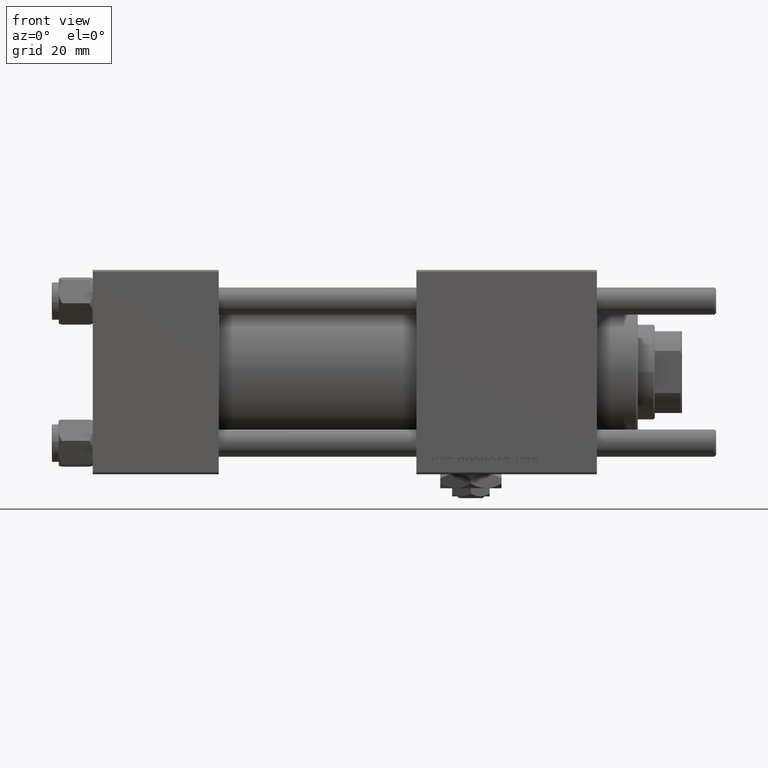
[diagram: clean part render]
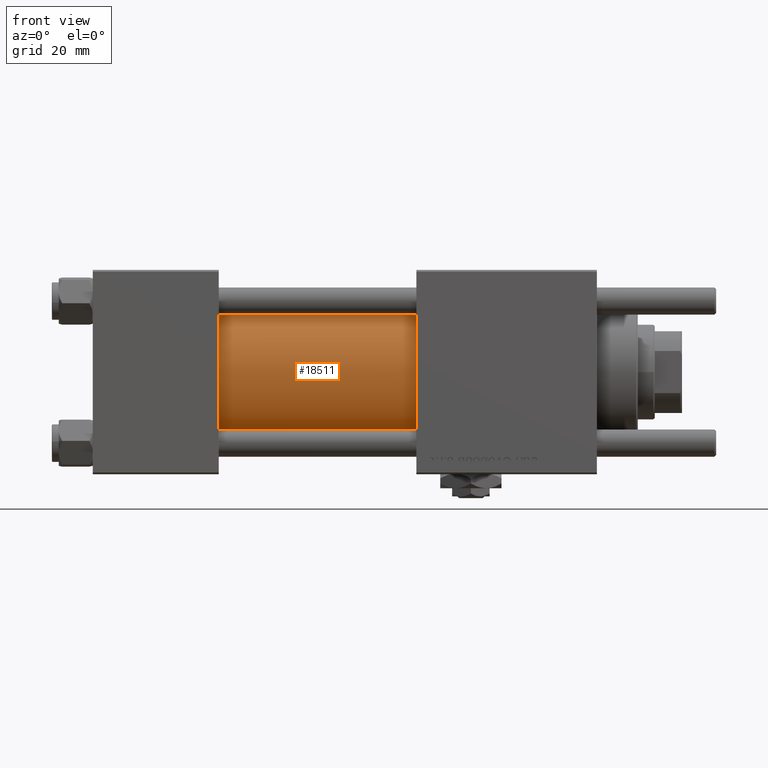
[diagram: same view with one face highlighted and labeled with its STEP entity id]
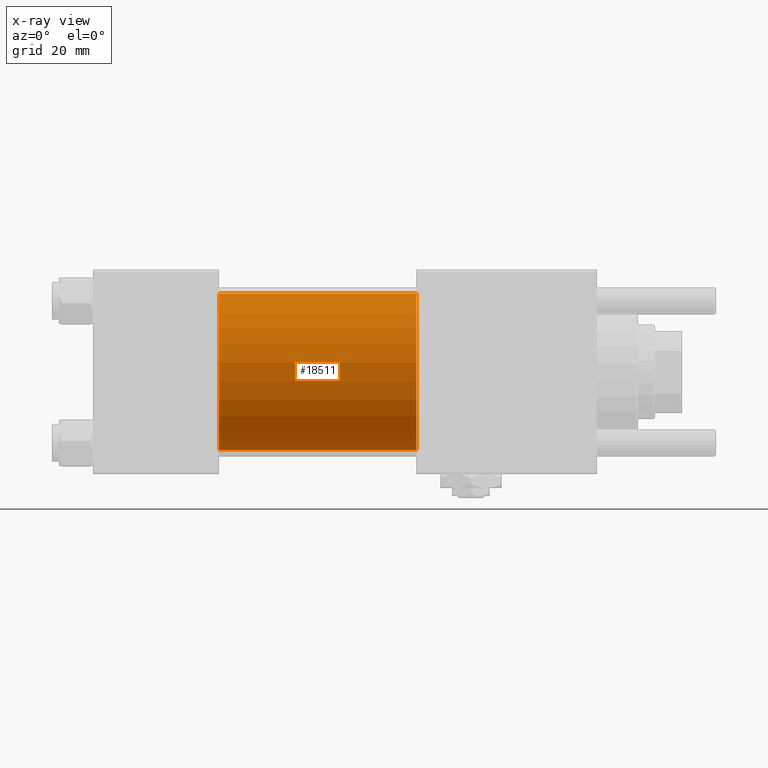
[diagram: x-ray of the same camera — body ghosted, the highlighted face saturated]
A machine part, front view. The second image highlights one B-rep face of the part: STEP entity #18511.
The next image is the same camera in x-ray: the body ghosted, the highlighted face saturated — about 0% of this face is hidden behind the body in this view.
In plain terms, the highlighted cylindrical surface (partial cylindrical patch) has radius 23 mm, axis along (-1, -0, -0).
Its self-contained STEP definition (entity closure, byte-faithful):
#1140 = EDGE_CURVE ( 'NONE', #26966, #45530, #2129, .T. ) ;
#2129 = CIRCLE ( 'NONE', #41826, 23.00000000000000000 ) ;
#2488 = CARTESIAN_POINT ( 'NONE',  ( 95.00000000000000000, 2.146024240737012665E-16, -23.00000000000000000 ) ) ;
#3355 = DIRECTION ( 'NONE',  ( -1.000000000000000000, -0.000000000000000000, -0.000000000000000000 ) ) ;
#4228 = AXIS2_PLACEMENT_3D ( 'NONE', #14336, #49003, #44558 ) ;
#7810 = FACE_OUTER_BOUND ( 'NONE', #24193, .T. ) ;
#8060 = EDGE_CURVE ( 'NONE', #45530, #42310, #20546, .T. ) ;
#10287 = LINE ( 'NONE', #46718, #30890 ) ;
#12971 = EDGE_CURVE ( 'NONE', #22922, #42310, #58104, .T. ) ;
#14336 = CARTESIAN_POINT ( 'NONE',  ( 37.00000000000000000, -2.602085213965210642E-15, 0.000000000000000000 ) ) ;
#14768 = ORIENTED_EDGE ( 'NONE', *, *, #8060, .F. ) ;
#16565 = CARTESIAN_POINT ( 'NONE',  ( 95.00000000000000000, -2.602085213965210642E-15, 23.00000000000000000 ) ) ;
#17868 = DIRECTION ( 'NONE',  ( -1.000000000000000000, -0.000000000000000000, -0.000000000000000000 ) ) ;
#18086 = EDGE_CURVE ( 'NONE', #26966, #22922, #10287, .T. ) ;
#18511 = ADVANCED_FACE ( 'NONE', ( #7810 ), #40384, .T. ) ;
#20293 = VECTOR ( 'NONE', #3355, 1000.000000000000000 ) ;
#20546 = LINE ( 'NONE', #56943, #20293 ) ;
#22922 = VERTEX_POINT ( 'NONE', #38067 ) ;
#24193 = EDGE_LOOP ( 'NONE', ( #14768, #55593, #44659, #36626 ) ) ;
#26966 = VERTEX_POINT ( 'NONE', #16565 ) ;
#29752 = CARTESIAN_POINT ( 'NONE',  ( 37.00000000000000000, 2.146024240737012665E-16, -23.00000000000000000 ) ) ;
#30890 = VECTOR ( 'NONE', #45555, 1000.000000000000000 ) ;
#32505 = DIRECTION ( 'NONE',  ( 1.000000000000000000, 0.000000000000000000, 0.000000000000000000 ) ) ;
#35642 = AXIS2_PLACEMENT_3D ( 'NONE', #48687, #17868, #39796 ) ;
#36626 = ORIENTED_EDGE ( 'NONE', *, *, #12971, .T. ) ;
#36934 = DIRECTION ( 'NONE',  ( 0.000000000000000000, 0.000000000000000000, -1.000000000000000000 ) ) ;
#37225 = CARTESIAN_POINT ( 'NONE',  ( 95.00000000000000000, -2.602085213965210642E-15, 0.000000000000000000 ) ) ;
#38067 = CARTESIAN_POINT ( 'NONE',  ( 37.00000000000000000, -2.602085213965210642E-15, 23.00000000000000000 ) ) ;
#39796 = DIRECTION ( 'NONE',  ( 0.000000000000000000, 0.000000000000000000, 1.000000000000000000 ) ) ;
#40384 = CYLINDRICAL_SURFACE ( 'NONE', #35642, 23.00000000000000000 ) ;
#41826 = AXIS2_PLACEMENT_3D ( 'NONE', #37225, #32505, #36934 ) ;
#42310 = VERTEX_POINT ( 'NONE', #29752 ) ;
#44558 = DIRECTION ( 'NONE',  ( 0.000000000000000000, 0.000000000000000000, 1.000000000000000000 ) ) ;
#44659 = ORIENTED_EDGE ( 'NONE', *, *, #18086, .T. ) ;
#45530 = VERTEX_POINT ( 'NONE', #2488 ) ;
#45555 = DIRECTION ( 'NONE',  ( -1.000000000000000000, -0.000000000000000000, -0.000000000000000000 ) ) ;
#46718 = CARTESIAN_POINT ( 'NONE',  ( 95.00000000000000000, -2.602085213965210642E-15, 23.00000000000000000 ) ) ;
#48687 = CARTESIAN_POINT ( 'NONE',  ( 95.00000000000000000, -2.602085213965210642E-15, 0.000000000000000000 ) ) ;
#49003 = DIRECTION ( 'NONE',  ( 1.000000000000000000, -0.000000000000000000, 0.000000000000000000 ) ) ;
#55593 = ORIENTED_EDGE ( 'NONE', *, *, #1140, .F. ) ;
#56943 = CARTESIAN_POINT ( 'NONE',  ( 95.00000000000000000, 2.146024240737012665E-16, -23.00000000000000000 ) ) ;
#58104 = CIRCLE ( 'NONE', #4228, 23.00000000000000000 ) ;